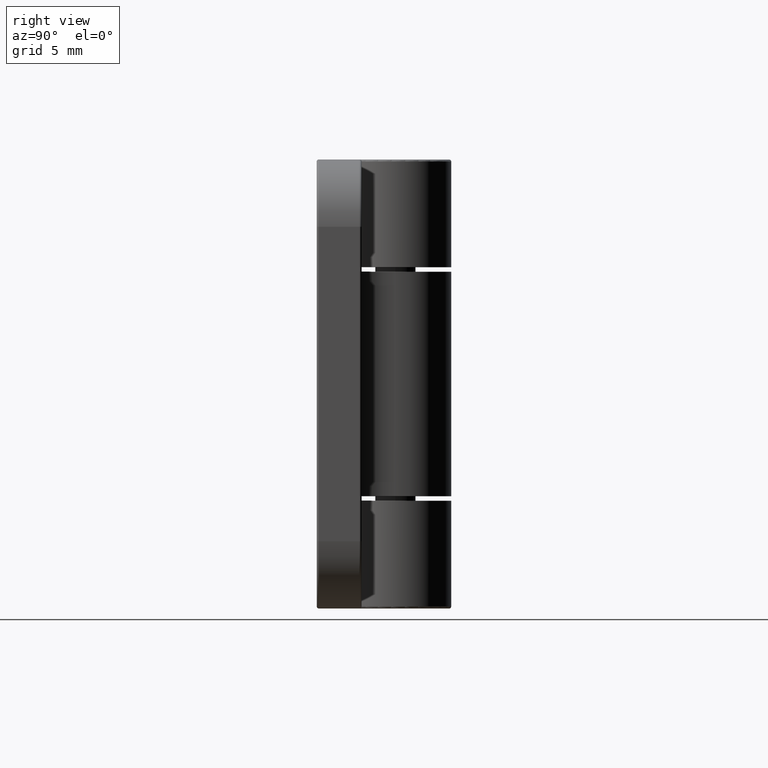
[diagram: clean part render]
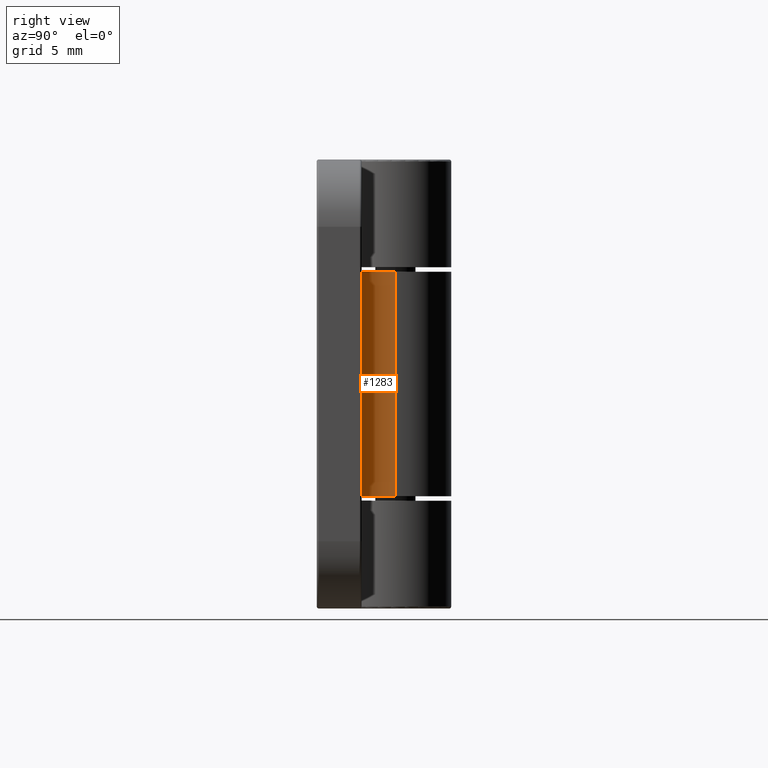
[diagram: same view with one face highlighted and labeled with its STEP entity id]
A machine part, right view. The second image highlights one B-rep face of the part: STEP entity #1283.
In plain terms, the highlighted cylindrical surface (partial cylindrical patch) has radius 2.5 mm, axis along (0, 0, -1).
Its self-contained STEP definition (entity closure, byte-faithful):
#165=FACE_OUTER_BOUND('',#262,.T.);
#262=EDGE_LOOP('',(#1088,#1089,#1090,#1091));
#362=LINE('',#2291,#438);
#363=LINE('',#2293,#439);
#438=VECTOR('',#1803,10.);
#439=VECTOR('',#1806,10.);
#507=CIRCLE('',#1420,2.49999999999999);
#517=CIRCLE('',#1433,2.49999999999999);
#613=VERTEX_POINT('',#2239);
#614=VERTEX_POINT('',#2241);
#624=VERTEX_POINT('',#2264);
#631=VERTEX_POINT('',#2280);
#767=EDGE_CURVE('',#614,#613,#507,.T.);
#787=EDGE_CURVE('',#624,#631,#517,.T.);
#792=EDGE_CURVE('',#614,#631,#362,.T.);
#793=EDGE_CURVE('',#613,#624,#363,.T.);
#1088=ORIENTED_EDGE('',*,*,#767,.T.);
#1089=ORIENTED_EDGE('',*,*,#793,.T.);
#1090=ORIENTED_EDGE('',*,*,#787,.T.);
#1091=ORIENTED_EDGE('',*,*,#792,.F.);
#1215=CYLINDRICAL_SURFACE('',#1438,2.49999999999999);
#1283=ADVANCED_FACE('',(#165),#1215,.F.);
#1420=AXIS2_PLACEMENT_3D('',#2242,#1754,#1755);
#1433=AXIS2_PLACEMENT_3D('',#2282,#1790,#1791);
#1438=AXIS2_PLACEMENT_3D('',#2292,#1804,#1805);
#1754=DIRECTION('center_axis',(0.,0.,-1.));
#1755=DIRECTION('ref_axis',(-0.799999999999998,0.600000000000002,0.));
#1790=DIRECTION('center_axis',(0.,0.,1.));
#1791=DIRECTION('ref_axis',(-0.799999999999998,0.600000000000002,0.));
#1803=DIRECTION('',(0.,0.,1.));
#1804=DIRECTION('center_axis',(0.,0.,1.));
#1805=DIRECTION('ref_axis',(-0.799999999999998,0.600000000000002,0.));
#1806=DIRECTION('',(0.,0.,1.));
#2239=CARTESIAN_POINT('',(-3.,2.,-5.));
#2241=CARTESIAN_POINT('',(-2.5,3.5,-5.));
#2242=CARTESIAN_POINT('Origin',(-4.99999999999999,3.5,-5.));
#2264=CARTESIAN_POINT('',(-3.,2.,5.));
#2280=CARTESIAN_POINT('',(-2.5,3.5,5.));
#2282=CARTESIAN_POINT('Origin',(-4.99999999999999,3.5,5.));
#2291=CARTESIAN_POINT('',(-2.5,3.5,0.));
#2292=CARTESIAN_POINT('Origin',(-4.99999999999999,3.5,0.));
#2293=CARTESIAN_POINT('',(-3.,2.,0.));